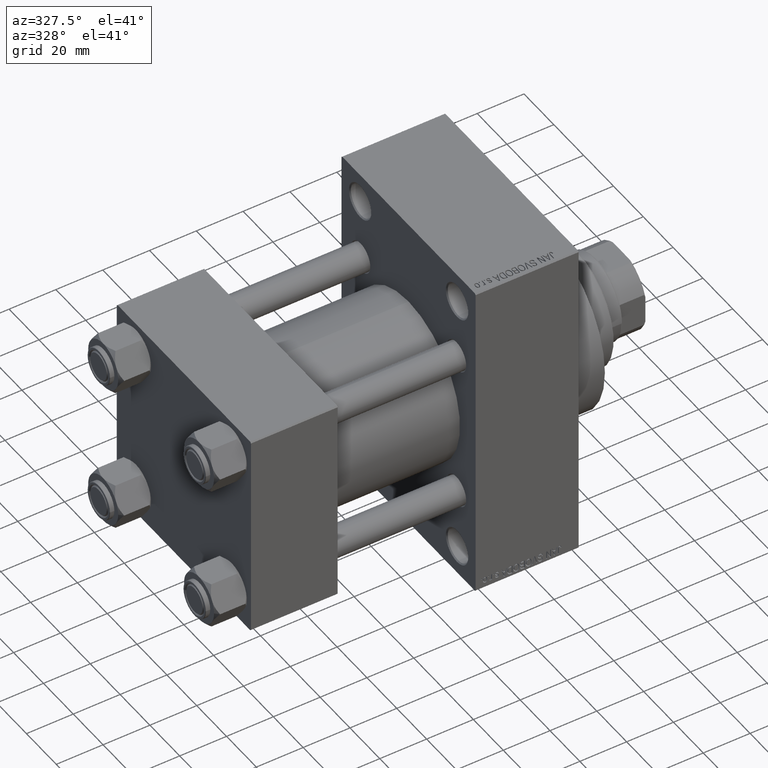
[diagram: clean part render]
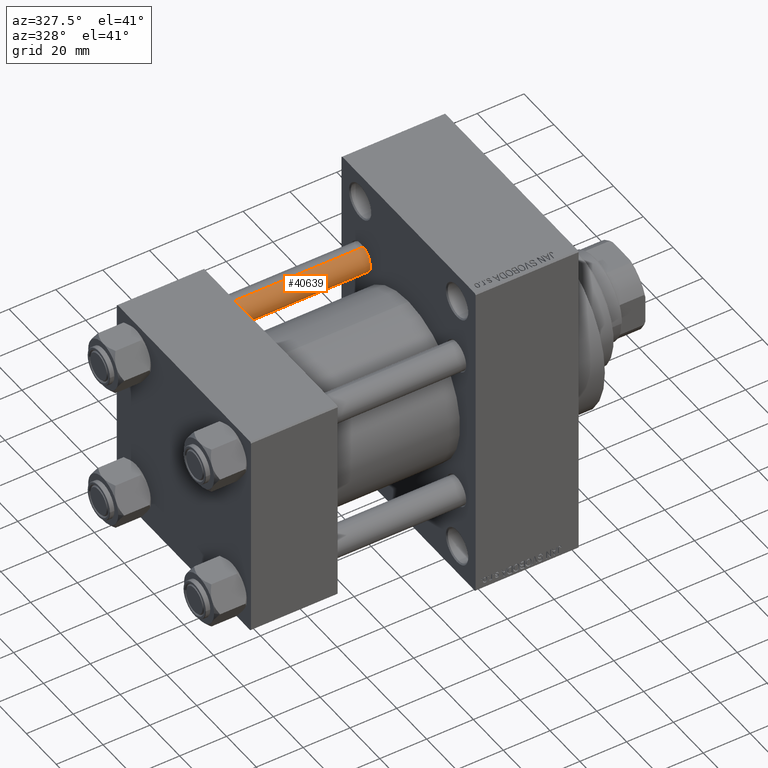
[diagram: same view with one face highlighted and labeled with its STEP entity id]
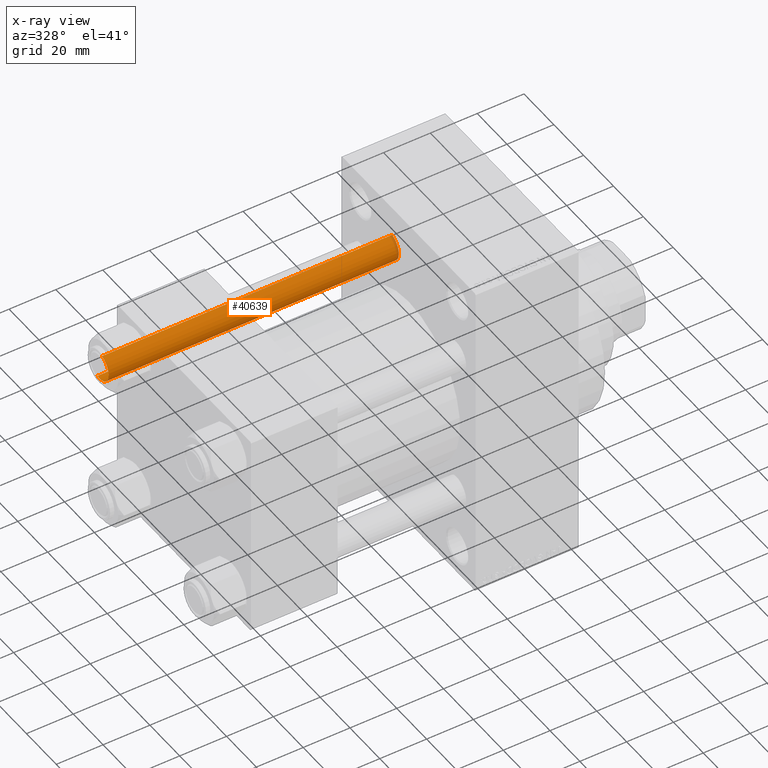
[diagram: x-ray of the same camera — body ghosted, the highlighted face saturated]
A machine part, auxiliary view. The second image highlights one B-rep face of the part: STEP entity #40639.
The next image is the same camera in x-ray: the body ghosted, the highlighted face saturated — about 1% of this face is hidden behind the body in this view.
In plain terms, the highlighted cylindrical surface (edge-blend (fillet) strip) has radius 6 mm, axis along (-1, -0, 0).
Its self-contained STEP definition (entity closure, byte-faithful):
#1746 = ORIENTED_EDGE ( 'NONE', *, *, #43905, .F. ) ;
#2642 = DIRECTION ( 'NONE',  ( -0.000000000000000000, -0.000000000000000000, -1.000000000000000000 ) ) ;
#4616 = VERTEX_POINT ( 'NONE', #7969 ) ;
#4630 = CARTESIAN_POINT ( 'NONE',  ( 6.000000000000000888, 7.347880794884120722E-16, 0.4999999999999865663 ) ) ;
#5329 = CARTESIAN_POINT ( 'NONE',  ( 0.000000000000000000, 0.000000000000000000, 0.4999999999999865663 ) ) ;
#7969 = CARTESIAN_POINT ( 'NONE',  ( -6.000000000000000888, 0.000000000000000000, 124.5000000000000000 ) ) ;
#10752 = DIRECTION ( 'NONE',  ( 1.000000000000000000, 0.000000000000000000, 0.000000000000000000 ) ) ;
#10973 = ORIENTED_EDGE ( 'NONE', *, *, #25406, .T. ) ;
#11775 = EDGE_CURVE ( 'NONE', #34376, #41573, #24334, .T. ) ;
#11791 = VECTOR ( 'NONE', #2642, 1000.000000000000000 ) ;
#12117 = CARTESIAN_POINT ( 'NONE',  ( -6.000000000000000888, 0.000000000000000000, 0.4999999999999865663 ) ) ;
#13119 = LINE ( 'NONE', #27690, #36109 ) ;
#13899 = FACE_OUTER_BOUND ( 'NONE', #21726, .T. ) ;
#14799 = EDGE_CURVE ( 'NONE', #40568, #4616, #35127, .T. ) ;
#20343 = ORIENTED_EDGE ( 'NONE', *, *, #11775, .T. ) ;
#20435 = CARTESIAN_POINT ( 'NONE',  ( 0.000000000000000000, 0.000000000000000000, 125.0000000000000000 ) ) ;
#21726 = EDGE_LOOP ( 'NONE', ( #1746, #42859, #10973, #20343 ) ) ;
#22153 = AXIS2_PLACEMENT_3D ( 'NONE', #28896, #22467, #10752 ) ;
#22467 = DIRECTION ( 'NONE',  ( 0.000000000000000000, 0.000000000000000000, -1.000000000000000000 ) ) ;
#23787 = CYLINDRICAL_SURFACE ( 'NONE', #32264, 6.000000000000000888 ) ;
#24334 = CIRCLE ( 'NONE', #31213, 6.000000000000000888 ) ;
#25406 = EDGE_CURVE ( 'NONE', #4616, #34376, #13119, .T. ) ;
#27532 = DIRECTION ( 'NONE',  ( 1.000000000000000000, 0.000000000000000000, 0.000000000000000000 ) ) ;
#27690 = CARTESIAN_POINT ( 'NONE',  ( -6.000000000000000888, 0.000000000000000000, 125.0000000000000000 ) ) ;
#28148 = DIRECTION ( 'NONE',  ( -0.000000000000000000, -0.000000000000000000, -1.000000000000000000 ) ) ;
#28896 = CARTESIAN_POINT ( 'NONE',  ( 0.000000000000000000, 0.000000000000000000, 124.5000000000000000 ) ) ;
#30643 = DIRECTION ( 'NONE',  ( -0.000000000000000000, -0.000000000000000000, 1.000000000000000000 ) ) ;
#31213 = AXIS2_PLACEMENT_3D ( 'NONE', #5329, #30643, #27532 ) ;
#32038 = CARTESIAN_POINT ( 'NONE',  ( 6.000000000000000888, 7.347880794884120722E-16, 124.5000000000000000 ) ) ;
#32264 = AXIS2_PLACEMENT_3D ( 'NONE', #20435, #34981, #39456 ) ;
#34376 = VERTEX_POINT ( 'NONE', #12117 ) ;
#34981 = DIRECTION ( 'NONE',  ( -0.000000000000000000, -0.000000000000000000, -1.000000000000000000 ) ) ;
#35127 = CIRCLE ( 'NONE', #22153, 6.000000000000000888 ) ;
#36060 = CARTESIAN_POINT ( 'NONE',  ( 6.000000000000000888, 7.347880794884120722E-16, 125.0000000000000000 ) ) ;
#36109 = VECTOR ( 'NONE', #28148, 1000.000000000000000 ) ;
#39412 = LINE ( 'NONE', #36060, #11791 ) ;
#39456 = DIRECTION ( 'NONE',  ( -1.000000000000000000, 0.000000000000000000, 0.000000000000000000 ) ) ;
#40568 = VERTEX_POINT ( 'NONE', #32038 ) ;
#40639 = ADVANCED_FACE ( 'NONE', ( #13899 ), #23787, .T. ) ;
#41573 = VERTEX_POINT ( 'NONE', #4630 ) ;
#42859 = ORIENTED_EDGE ( 'NONE', *, *, #14799, .T. ) ;
#43905 = EDGE_CURVE ( 'NONE', #40568, #41573, #39412, .T. ) ;